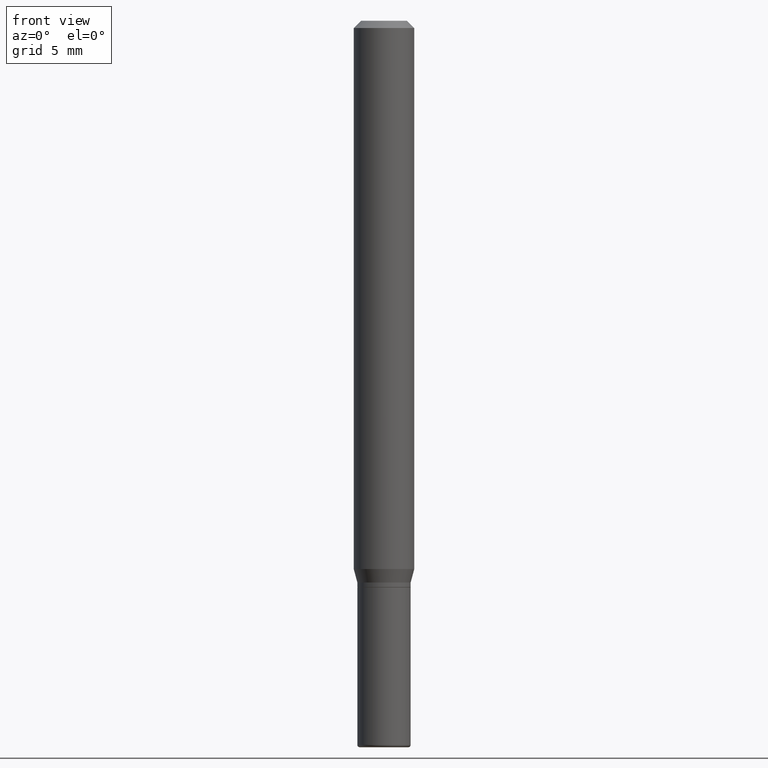
[diagram: clean part render]
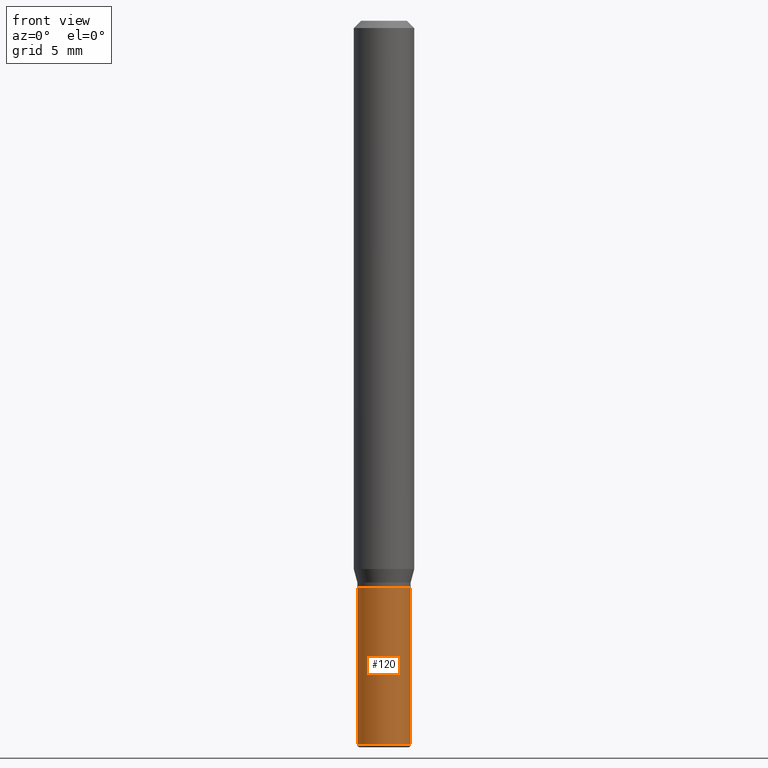
[diagram: same view with one face highlighted and labeled with its STEP entity id]
A machine part, front view. The second image highlights one B-rep face of the part: STEP entity #120.
In plain terms, the highlighted cylindrical surface (edge-blend (fillet) strip) has radius 1.397 mm, axis along (-0, 0, 1).
Its self-contained STEP definition (entity closure, byte-faithful):
#7 = CARTESIAN_POINT ( 'NONE',  ( 3.655975865246779122E-29, -5.219764601570503141E-15, -1.495000000000000107 ) ) ;
#11 = DIRECTION ( 'NONE',  ( 1.000000000000000000, -6.982962677686266711E-15, 4.876176775795935793E-29 ) ) ;
#37 = AXIS2_PLACEMENT_3D ( 'NONE', #98, #310, #101 ) ;
#61 = CARTESIAN_POINT ( 'NONE',  ( -0.05500000000000018069, -4.261600379340434577E-15, -1.495000000000000107 ) ) ;
#75 = CIRCLE ( 'NONE', #258, 0.05500000000000018069 ) ;
#98 = CARTESIAN_POINT ( 'NONE',  ( 2.861198503236610065E-29, -4.085033166446480067E-15, -1.170000000000000151 ) ) ;
#101 = DIRECTION ( 'NONE',  ( 1.000000000000000000, -6.982962677686262766E-15, 0.000000000000000000 ) ) ;
#105 = AXIS2_PLACEMENT_3D ( 'NONE', #267, #499, #11 ) ;
#108 = ORIENTED_EDGE ( 'NONE', *, *, #205, .T. ) ;
#120 = ADVANCED_FACE ( 'NONE', ( #193 ), #235, .T. ) ;
#130 = EDGE_CURVE ( 'NONE', #159, #468, #247, .T. ) ;
#131 = DIRECTION ( 'NONE',  ( -2.445468806185136877E-29, 3.491481338843145188E-15, 1.000000000000000000 ) ) ;
#133 = ORIENTED_EDGE ( 'NONE', *, *, #256, .F. ) ;
#159 = VERTEX_POINT ( 'NONE', #262 ) ;
#193 = FACE_OUTER_BOUND ( 'NONE', #208, .T. ) ;
#205 = EDGE_CURVE ( 'NONE', #313, #468, #384, .T. ) ;
#208 = EDGE_LOOP ( 'NONE', ( #133, #482, #108, #395 ) ) ;
#212 = CARTESIAN_POINT ( 'NONE',  ( 0.05500000000000018069, -5.603827548843249703E-15, -1.495000000000000107 ) ) ;
#221 = DIRECTION ( 'NONE',  ( 1.000000000000000000, -6.982962677686274599E-15, 0.000000000000000000 ) ) ;
#235 = CYLINDRICAL_SURFACE ( 'NONE', #105, 0.05500000000000009742 ) ;
#247 = CIRCLE ( 'NONE', #37, 0.05500000000000000028 ) ;
#256 = EDGE_CURVE ( 'NONE', #386, #159, #293, .T. ) ;
#258 = AXIS2_PLACEMENT_3D ( 'NONE', #7, #333, #221 ) ;
#262 = CARTESIAN_POINT ( 'NONE',  ( -0.05500000000000000028, -4.261600379340436155E-15, -1.170000000000000151 ) ) ;
#267 = CARTESIAN_POINT ( 'NONE',  ( 0.000000000000000000, 0.000000000000000000, 0.000000000000000000 ) ) ;
#293 = LINE ( 'NONE', #356, #354 ) ;
#296 = DIRECTION ( 'NONE',  ( -2.445468806185136877E-29, 3.491481338843145188E-15, 1.000000000000000000 ) ) ;
#310 = DIRECTION ( 'NONE',  ( -2.445468806185136597E-29, 3.491481338843145583E-15, 1.000000000000000000 ) ) ;
#313 = VERTEX_POINT ( 'NONE', #212 ) ;
#333 = DIRECTION ( 'NONE',  ( -2.445468806185136597E-29, 3.491481338843145583E-15, 1.000000000000000000 ) ) ;
#353 = CARTESIAN_POINT ( 'NONE',  ( 0.05500000000000000028, -4.469096113719225052E-15, -1.170000000000000151 ) ) ;
#354 = VECTOR ( 'NONE', #131, 39.37007874015748143 ) ;
#356 = CARTESIAN_POINT ( 'NONE',  ( -0.05500000000000009742, 3.907985046680557945E-16, -2.705414299640202916E-30 ) ) ;
#384 = LINE ( 'NONE', #504, #485 ) ;
#386 = VERTEX_POINT ( 'NONE', #61 ) ;
#393 = EDGE_CURVE ( 'NONE', #386, #313, #75, .T. ) ;
#395 = ORIENTED_EDGE ( 'NONE', *, *, #130, .F. ) ;
#468 = VERTEX_POINT ( 'NONE', #353 ) ;
#482 = ORIENTED_EDGE ( 'NONE', *, *, #393, .T. ) ;
#485 = VECTOR ( 'NONE', #296, 39.37007874015748143 ) ;
#499 = DIRECTION ( 'NONE',  ( -2.445468806185136597E-29, 3.491481338843145583E-15, 1.000000000000000000 ) ) ;
#504 = CARTESIAN_POINT ( 'NONE',  ( 0.05500000000000009742, -3.840629472727453298E-16, 2.681897226687769380E-30 ) ) ;